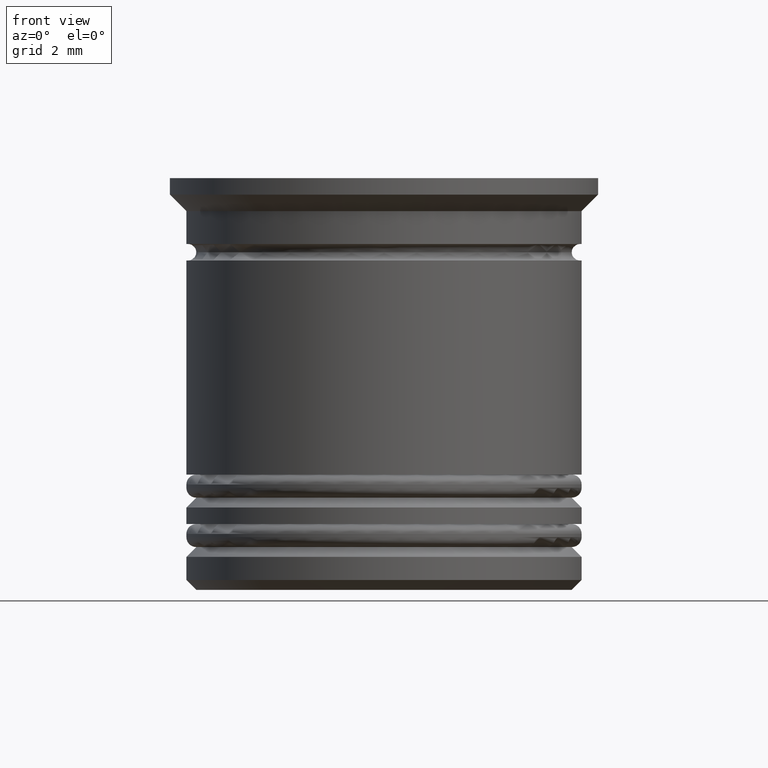
[diagram: clean part render]
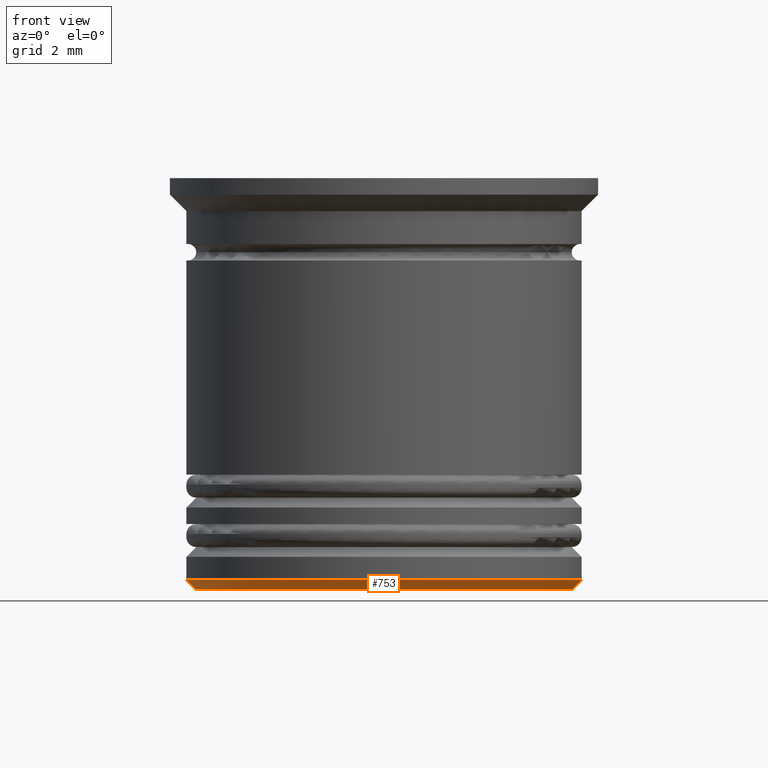
[diagram: same view with one face highlighted and labeled with its STEP entity id]
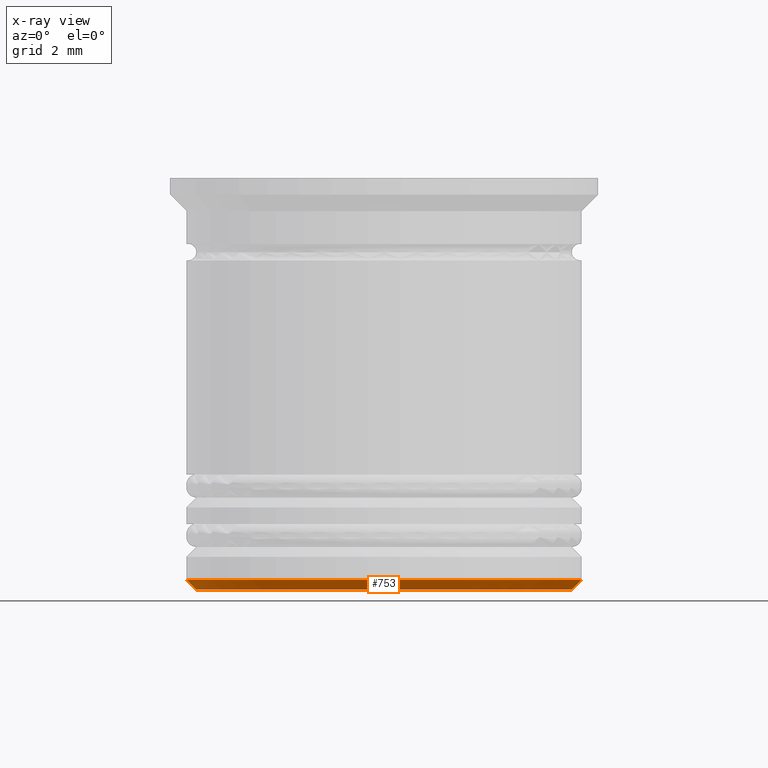
[diagram: x-ray of the same camera — body ghosted, the highlighted face saturated]
A machine part, front view. The second image highlights one B-rep face of the part: STEP entity #753.
The next image is the same camera in x-ray: the body ghosted, the highlighted face saturated — about 0% of this face is hidden behind the body in this view.
In plain terms, the highlighted conical surface has half-angle 45 deg.
Its self-contained STEP definition (entity closure, byte-faithful):
#155 = AXIS2_PLACEMENT_3D ( 'NONE', #870, #397, #1609 ) ;
#161 = CIRCLE ( 'NONE', #1450, 5.699999999999995737 ) ;
#222 = DIRECTION ( 'NONE',  ( -0.000000000000000000, -0.000000000000000000, 1.000000000000000000 ) ) ;
#294 = CIRCLE ( 'NONE', #1298, 6.000000000000001776 ) ;
#397 = DIRECTION ( 'NONE',  ( -0.000000000000000000, -0.000000000000000000, 1.000000000000000000 ) ) ;
#459 = ORIENTED_EDGE ( 'NONE', *, *, #1329, .F. ) ;
#467 = ORIENTED_EDGE ( 'NONE', *, *, #1035, .T. ) ;
#512 = CARTESIAN_POINT ( 'NONE',  ( -6.000000000000001776, 7.347880794884121708E-16, -12.19999999999999574 ) ) ;
#603 = CARTESIAN_POINT ( 'NONE',  ( 6.000000000000001776, 0.000000000000000000, -12.19999999999999574 ) ) ;
#677 = DIRECTION ( 'NONE',  ( -1.000000000000000000, 0.000000000000000000, 0.000000000000000000 ) ) ;
#753 = ADVANCED_FACE ( 'NONE', ( #1339 ), #1445, .T. ) ;
#774 = LINE ( 'NONE', #1692, #800 ) ;
#781 = VERTEX_POINT ( 'NONE', #1929 ) ;
#792 = DIRECTION ( 'NONE',  ( 0.000000000000000000, 0.000000000000000000, -1.000000000000000000 ) ) ;
#800 = VECTOR ( 'NONE', #1858, 999.9999999999998863 ) ;
#806 = CARTESIAN_POINT ( 'NONE',  ( -6.000000000000001776, 7.347880794884120722E-16, -12.19999999999999574 ) ) ;
#824 = CARTESIAN_POINT ( 'NONE',  ( -5.699999999999995737, 7.164183775012013464E-16, -12.50000000000000000 ) ) ;
#853 = ORIENTED_EDGE ( 'NONE', *, *, #1931, .F. ) ;
#870 = CARTESIAN_POINT ( 'NONE',  ( 0.000000000000000000, 0.000000000000000000, -12.19999999999999574 ) ) ;
#978 = VERTEX_POINT ( 'NONE', #603 ) ;
#992 = ORIENTED_EDGE ( 'NONE', *, *, #1454, .F. ) ;
#1014 = VERTEX_POINT ( 'NONE', #512 ) ;
#1035 = EDGE_CURVE ( 'NONE', #781, #978, #774, .T. ) ;
#1183 = VERTEX_POINT ( 'NONE', #824 ) ;
#1200 = VECTOR ( 'NONE', #1706, 999.9999999999998863 ) ;
#1298 = AXIS2_PLACEMENT_3D ( 'NONE', #1879, #222, #677 ) ;
#1329 = EDGE_CURVE ( 'NONE', #1014, #978, #294, .T. ) ;
#1339 = FACE_OUTER_BOUND ( 'NONE', #1543, .T. ) ;
#1378 = DIRECTION ( 'NONE',  ( -1.000000000000000000, 0.000000000000000000, 0.000000000000000000 ) ) ;
#1445 = CONICAL_SURFACE ( 'NONE', #155, 6.000000000000001776, 0.7853981633974497223 ) ;
#1450 = AXIS2_PLACEMENT_3D ( 'NONE', #1539, #792, #1378 ) ;
#1454 = EDGE_CURVE ( 'NONE', #781, #1183, #161, .T. ) ;
#1539 = CARTESIAN_POINT ( 'NONE',  ( 0.000000000000000000, 0.000000000000000000, -12.50000000000000000 ) ) ;
#1543 = EDGE_LOOP ( 'NONE', ( #853, #992, #467, #459 ) ) ;
#1551 = LINE ( 'NONE', #806, #1200 ) ;
#1609 = DIRECTION ( 'NONE',  ( 1.000000000000000000, 0.000000000000000000, 0.000000000000000000 ) ) ;
#1692 = CARTESIAN_POINT ( 'NONE',  ( 6.000000000000001776, 0.000000000000000000, -12.19999999999999574 ) ) ;
#1706 = DIRECTION ( 'NONE',  ( -0.7071067811865486830, 8.659560562354945184E-17, 0.7071067811865464625 ) ) ;
#1858 = DIRECTION ( 'NONE',  ( 0.7071067811865486830, 0.000000000000000000, 0.7071067811865464625 ) ) ;
#1879 = CARTESIAN_POINT ( 'NONE',  ( 0.000000000000000000, 0.000000000000000000, -12.19999999999999574 ) ) ;
#1929 = CARTESIAN_POINT ( 'NONE',  ( 5.699999999999995737, 0.000000000000000000, -12.50000000000000000 ) ) ;
#1931 = EDGE_CURVE ( 'NONE', #1183, #1014, #1551, .T. ) ;